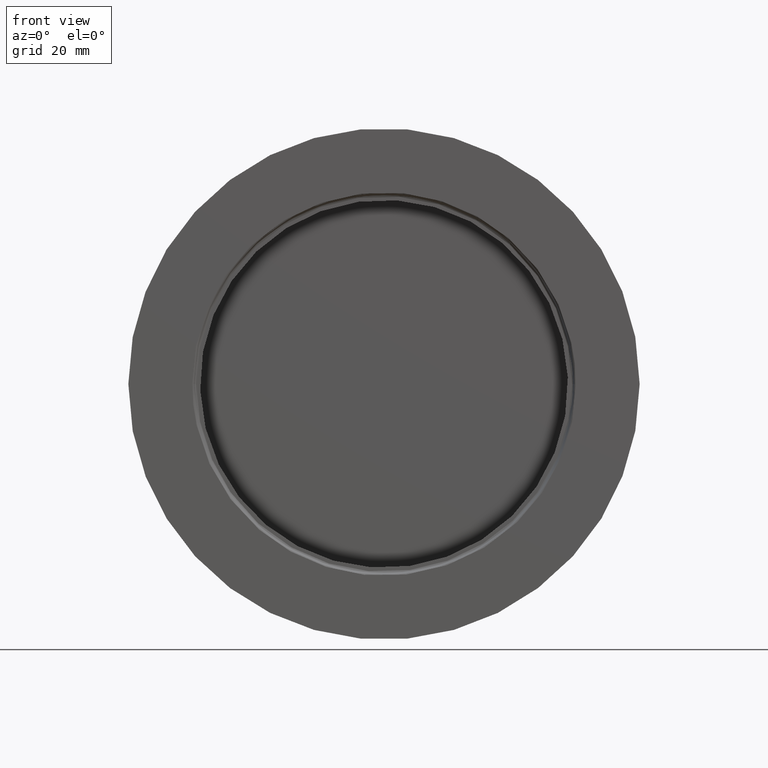
[diagram: clean part render]
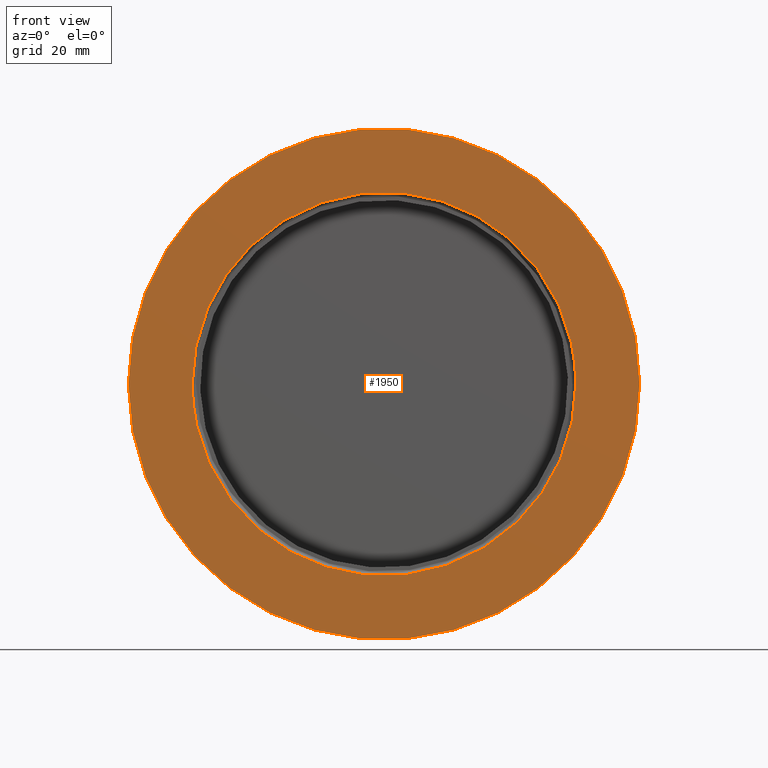
[diagram: same view with one face highlighted and labeled with its STEP entity id]
A machine part, front view. The second image highlights one B-rep face of the part: STEP entity #1950.
In plain terms, the highlighted planar face has unit normal (0, -1, -0).
Its self-contained STEP definition (entity closure, byte-faithful):
#40 = AXIS2_PLACEMENT_3D ( 'NONE', #1377, #1356, #1355 ) ;
#89 = FACE_OUTER_BOUND ( 'NONE', #496, .T. ) ;
#100 = FACE_BOUND ( 'NONE', #495, .T. ) ;
#201 = CIRCLE ( 'NONE', #610, 1.870000000000000100 ) ;
#275 = CIRCLE ( 'NONE', #666, 1.870000000000000100 ) ;
#295 = ORIENTED_EDGE ( 'NONE', *, *, #717, .F. ) ;
#296 = ORIENTED_EDGE ( 'NONE', *, *, #564, .F. ) ;
#297 = ORIENTED_EDGE ( 'NONE', *, *, #683, .T. ) ;
#298 = ORIENTED_EDGE ( 'NONE', *, *, #753, .T. ) ;
#495 = EDGE_LOOP ( 'NONE', ( #297, #298 ) ) ;
#496 = EDGE_LOOP ( 'NONE', ( #295, #296 ) ) ;
#564 = EDGE_CURVE ( 'NONE', #1999, #2010, #275, .T. ) ;
#610 = AXIS2_PLACEMENT_3D ( 'NONE', #1399, #1400, #1394 ) ;
#666 = AXIS2_PLACEMENT_3D ( 'NONE', #815, #813, #816 ) ;
#683 = EDGE_CURVE ( 'NONE', #1977, #1978, #1121, .T. ) ;
#717 = EDGE_CURVE ( 'NONE', #2010, #1999, #201, .T. ) ;
#753 = EDGE_CURVE ( 'NONE', #1978, #1977, #1117, .T. ) ;
#813 = DIRECTION ( 'NONE',  ( 0.0000000000000000000, 1.000000000000000000, 0.0000000000000000000 ) ) ;
#815 = CARTESIAN_POINT ( 'NONE',  ( 0.0000000000000000000, -0.2350000000000000100, 0.0000000000000000000 ) ) ;
#816 = DIRECTION ( 'NONE',  ( 1.000000000000000000, 0.0000000000000000000, 0.0000000000000000000 ) ) ;
#1117 = B_SPLINE_CURVE_WITH_KNOTS ( 'NONE', 3,
 ( #1756, #1755, #1751, #1750, #1749, #1748, #1747, #1746, #1745, #1744, #1743, #1742, #1741, #1740, #1739, #1738, #1737, #1736, #1735, #1734, #1733, #1732, #1731, #1730, #1729, #1728, #1727, #1726, #1725, #1724, #1723, #1722, #1721, #1720, #1719, #1718, #1717, #1716, #1715, #1714, #1713, #1712, #1711, #1710, #1709, #1708, #1707, #1706, #1705, #1704, #1703, #1702, #1701, #1700, #1699, #1698, #1697, #1696, #1695, #1694, #1693, #1692, #1691, #1690, #1689, #1688, #1687, #1686, #1685, #1684, #1683, #1682, #1681, #1680, #1679, #1678, #1677, #1676, #1675, #1674, #1673, #1672, #1671, #1670, #1669, #1668, #1667, #1666, #1665, #1664, #1663, #1662, #1661, #1660, #1659, #1658, #1657, #1656, #1655, #1654, #1653, #1652, #1651, #1646, #1645, #1644, #1641, #1640, #1639, #1638, #1637, #1636, #1635, #1634 ),
 .UNSPECIFIED., .F., .F.,
 ( 4, 1, 1, 1, 1, 1, 2, 2, 1, 1, 1, 1, 1, 2, 2, 1, 1, 1, 1, 2, 2, 2, 1, 1, 1, 1, 2, 2, 1, 1, 1, 1, 1, 2, 2, 1, 1, 1, 1, 1, 2, 2, 2, 1, 1, 1, 1, 1, 2, 2, 1, 1, 1, 1, 1, 2, 2, 1, 1, 1, 1, 2, 2, 2, 1, 1, 1, 1, 2, 2, 1, 1, 1, 1, 1, 2, 2, 1, 1, 1, 1, 1, 2, 2, 4 ),
 ( 0.5000000000000000000, 0.5156250000000021100, 0.5234375000000032200, 0.5273437500000037700, 0.5292968750000040000, 0.5302734375000041100, 0.5307617187500042200, 0.5312500000000042200, 0.5468750000000056600, 0.5546875000000064400, 0.5585937500000067700, 0.5605468750000068800, 0.5615234375000069900, 0.5620117187500069900, 0.5625000000000071100, 0.5781250000000082200, 0.5859375000000087700, 0.5898437500000089900, 0.5917968750000091000, 0.5927734375000091000, 0.5937500000000092100, 0.6250000000000114400, 0.6406250000000126600, 0.6484375000000131000, 0.6523437500000135400, 0.6542968750000136600, 0.6552734375000137700, 0.6562500000000137700, 0.6718750000000151000, 0.6796875000000156500, 0.6835937500000159900, 0.6855468750000161000, 0.6865234375000162100, 0.6870117187500162100, 0.6875000000000162100, 0.7031250000000163200, 0.7109375000000164300, 0.7148437500000164300, 0.7167968750000164300, 0.7177734375000163200, 0.7182617187500163200, 0.7187500000000163200, 0.7500000000000162100, 0.7656250000000159900, 0.7734375000000159900, 0.7773437500000159900, 0.7792968750000159900, 0.7802734375000159900, 0.7807617187500159900, 0.7812500000000159900, 0.7968750000000159900, 0.8046875000000159900, 0.8085937500000158800, 0.8105468750000158800, 0.8115234375000157700, 0.8120117187500158800, 0.8125000000000158800, 0.8281250000000156500, 0.8359375000000155400, 0.8398437500000155400, 0.8417968750000155400, 0.8427734375000155400, 0.8437500000000155400, 0.8750000000000148800, 0.8906250000000146500, 0.8984375000000144300, 0.9023437500000144300, 0.9042968750000144300, 0.9052734375000143200, 0.9062500000000142100, 0.9218750000000129900, 0.9296875000000123200, 0.9335937500000119900, 0.9355468750000117700, 0.9365234375000117700, 0.9370117187500116600, 0.9375000000000115500, 0.9531250000000084400, 0.9609375000000068800, 0.9648437500000061100, 0.9667968750000056600, 0.9677734375000055500, 0.9682617187500053300, 0.9687500000000053300, 1.000000000000000000 ),
 .UNSPECIFIED. ) ;
#1121 = B_SPLINE_CURVE_WITH_KNOTS ( 'NONE', 3,
 ( #2303, #2308, #2307, #2302, #2301, #2300, #2299, #2298, #2297, #2296, #2295, #2294, #2293, #2292, #2291, #2290, #2289, #2288, #2287, #2286, #2285, #2284, #2283, #2282, #2281, #2280, #2279, #2278, #2277, #2276, #2275, #2274, #2273, #2272, #2271, #2269, #2268, #2267, #2266, #2264, #2262, #2261, #2260, #2259, #2258, #2257, #2256, #2255, #2254, #2253, #2252, #2251, #2250, #2249, #2248, #2247, #2246, #2245, #2244, #2243, #2242, #2159, #2158, #2156, #2149, #2148, #2143, #2142, #2136, #2130, #2126, #2125, #2115, #2114, #2112, #2108, #2107, #2105, #2100, #2095, #2091, #2089, #2085, #2080, #2079, #2076, #2073, #2071, #2070, #2066, #2065, #2063, #2061, #2059, #2381, #2380, #2431, #2157, #2151, #2152, #2516, #2515, #2514, #2493, #2492, #2491, #2471, #2470, #2469, #2443, #2442, #2441, #2417, #2416 ),
 .UNSPECIFIED., .F., .F.,
 ( 4, 1, 1, 1, 1, 1, 2, 2, 1, 1, 1, 1, 1, 2, 2, 1, 1, 1, 1, 2, 2, 2, 1, 1, 1, 1, 2, 2, 1, 1, 1, 1, 1, 2, 2, 1, 1, 1, 1, 1, 2, 2, 2, 1, 1, 1, 1, 1, 2, 2, 1, 1, 1, 1, 1, 2, 2, 1, 1, 1, 1, 2, 2, 2, 1, 1, 1, 1, 2, 2, 1, 1, 1, 1, 1, 2, 2, 1, 1, 1, 1, 1, 2, 2, 4 ),
 ( 0.0000000000000000000, 0.01562500000000017000, 0.02343750000000025700, 0.02734375000000030500, 0.02929687500000033700, 0.03027343750000035000, 0.03076171875000034000, 0.03125000000000033300, 0.04687499999999986100, 0.05468749999999963900, 0.05859374999999953500, 0.06054687499999948700, 0.06152343749999945900, 0.06201171874999945900, 0.06249999999999945900, 0.07812499999999898700, 0.08593749999999879300, 0.08984374999999870900, 0.09179687499999869500, 0.09277343749999868200, 0.09374999999999865400, 0.1249999999999985300, 0.1406249999999984700, 0.1484374999999984500, 0.1523437499999984500, 0.1542968749999984200, 0.1552734374999984200, 0.1562499999999983900, 0.1718749999999980800, 0.1796874999999979200, 0.1835937499999978600, 0.1855468749999978400, 0.1865234374999978100, 0.1870117187499977800, 0.1874999999999977500, 0.2031249999999974200, 0.2109374999999972500, 0.2148437499999971400, 0.2167968749999971100, 0.2177734374999970900, 0.2182617187499971100, 0.2187499999999971100, 0.2499999999999978900, 0.2656249999999982800, 0.2734374999999985000, 0.2773437499999985600, 0.2792968749999986100, 0.2802734374999986100, 0.2807617187499986100, 0.2812499999999986100, 0.2968749999999989500, 0.3046874999999991100, 0.3085937499999991700, 0.3105468749999992200, 0.3115234374999992200, 0.3120117187499992200, 0.3124999999999992200, 0.3281249999999991100, 0.3359374999999990600, 0.3398437499999990600, 0.3417968749999990000, 0.3427734374999990000, 0.3437499999999990000, 0.3749999999999995000, 0.3906249999999998300, 0.3984374999999999400, 0.4023437500000000000, 0.4042968750000000000, 0.4052734375000000000, 0.4062500000000000600, 0.4218750000000003900, 0.4296875000000005600, 0.4335937500000006100, 0.4355468750000006100, 0.4365234375000006700, 0.4370117187500006700, 0.4375000000000006700, 0.4531250000000002200, 0.4609375000000000000, 0.4648437499999998900, 0.4667968749999998300, 0.4677734374999998900, 0.4682617187499998900, 0.4687499999999998900, 0.5000000000000000000 ),
 .UNSPECIFIED. ) ;
#1168 = CARTESIAN_POINT ( 'NONE',  ( 1.870000000000000100, -0.2350000000000000100, 0.0000000000000000000 ) ) ;
#1179 = CARTESIAN_POINT ( 'NONE',  ( -1.870000000000000100, -0.2350000000000000100, -2.290089514405550600E-016 ) ) ;
#1198 = CARTESIAN_POINT ( 'NONE',  ( 1.403000000000000200, -0.2350000000000000100, -1.718179459203736800E-016 ) ) ;
#1199 = CARTESIAN_POINT ( 'NONE',  ( -1.403000000000000000, -0.2350000000000000100, 0.0000000000000000000 ) ) ;
#1355 = DIRECTION ( 'NONE',  ( -1.000000000000000000, 0.0000000000000000000, -0.0000000000000000000 ) ) ;
#1356 = DIRECTION ( 'NONE',  ( 0.0000000000000000000, -1.000000000000000000, -0.0000000000000000000 ) ) ;
#1359 = PLANE ( 'NONE',  #40 ) ;
#1377 = CARTESIAN_POINT ( 'NONE',  ( 0.0000000000000000000, -0.2350000000000000100, 0.0000000000000000000 ) ) ;
#1394 = DIRECTION ( 'NONE',  ( 1.000000000000000000, 0.0000000000000000000, 0.0000000000000000000 ) ) ;
#1399 = CARTESIAN_POINT ( 'NONE',  ( 0.0000000000000000000, -0.2350000000000000100, 0.0000000000000000000 ) ) ;
#1400 = DIRECTION ( 'NONE',  ( 0.0000000000000000000, 1.000000000000000000, 0.0000000000000000000 ) ) ;
#1634 = CARTESIAN_POINT ( 'NONE',  ( -1.403000000000000000, -0.2350000000000000100, 0.0000000000000000000 ) ) ;
#1635 = CARTESIAN_POINT ( 'NONE',  ( -1.403002553954551000, -0.2350000000000001000, -0.08580757205452498000 ) ) ;
#1636 = CARTESIAN_POINT ( 'NONE',  ( -1.395195031250702900, -0.2350000000000001300, -0.1709056262326035200 ) ) ;
#1637 = CARTESIAN_POINT ( 'NONE',  ( -1.379333406898419100, -0.2350000000000000400, -0.2566127334139520200 ) ) ;
#1638 = CARTESIAN_POINT ( 'NONE',  ( -1.379057777472935800, -0.2350000000000001300, -0.2580903113319918400 ) ) ;
#1639 = CARTESIAN_POINT ( 'NONE',  ( -1.378531922855248800, -0.2349999999999999600, -0.2608846669285625500 ) ) ;
#1640 = CARTESIAN_POINT ( 'NONE',  ( -1.377736940726554100, -0.2350000000000000400, -0.2650744071222370700 ) ) ;
#1641 = CARTESIAN_POINT ( 'NONE',  ( -1.375838581011090000, -0.2350000000000000400, -0.2748379151658705300 ) ) ;
#1644 = CARTESIAN_POINT ( 'NONE',  ( -1.371868255919479000, -0.2350000000000001000, -0.2943147216200450200 ) ) ;
#1645 = CARTESIAN_POINT ( 'NONE',  ( -1.363233183093513400, -0.2350000000000000100, -0.3330674959960219200 ) ) ;
#1646 = CARTESIAN_POINT ( 'NONE',  ( -1.343185346870615200, -0.2350000000000000100, -0.4097696906184912800 ) ) ;
#1651 = CARTESIAN_POINT ( 'NONE',  ( -1.321239731986471300, -0.2350000000000001000, -0.4741372503586316300 ) ) ;
#1652 = CARTESIAN_POINT ( 'NONE',  ( -1.303969650590718300, -0.2350000000000000100, -0.5177587408639537900 ) ) ;
#1653 = CARTESIAN_POINT ( 'NONE',  ( -1.303399967751211600, -0.2349999999999999900, -0.5191913595515171800 ) ) ;
#1654 = CARTESIAN_POINT ( 'NONE',  ( -1.302300733931032900, -0.2349999999999999600, -0.5219426103207502900 ) ) ;
#1655 = CARTESIAN_POINT ( 'NONE',  ( -1.300645668019965000, -0.2350000000000000100, -0.5260662552076239600 ) ) ;
#1656 = CARTESIAN_POINT ( 'NONE',  ( -1.296740341295209700, -0.2350000000000000400, -0.5356654744081605900 ) ) ;
#1657 = CARTESIAN_POINT ( 'NONE',  ( -1.288755662783301900, -0.2349999999999999900, -0.5547734373338951700 ) ) ;
#1658 = CARTESIAN_POINT ( 'NONE',  ( -1.272090205509907000, -0.2350000000000000100, -0.5926274612840074500 ) ) ;
#1659 = CARTESIAN_POINT ( 'NONE',  ( -1.235974889964798700, -0.2350000000000001300, -0.6668879015788050600 ) ) ;
#1660 = CARTESIAN_POINT ( 'NONE',  ( -1.200245646357583700, -0.2350000000000000400, -0.7280580945079009300 ) ) ;
#1661 = CARTESIAN_POINT ( 'NONE',  ( -1.172683393232405000, -0.2350000000000001000, -0.7702151083425712300 ) ) ;
#1662 = CARTESIAN_POINT ( 'NONE',  ( -1.170984025946419900, -0.2350000000000001000, -0.7727966177258446300 ) ) ;
#1663 = CARTESIAN_POINT ( 'NONE',  ( -1.167640689508077100, -0.2350000000000000100, -0.7778394906498868900 ) ) ;
#1664 = CARTESIAN_POINT ( 'NONE',  ( -1.162603024705567900, -0.2350000000000000400, -0.7853853392335047300 ) ) ;
#1665 = CARTESIAN_POINT ( 'NONE',  ( -1.150689852484754000, -0.2350000000000000100, -0.8028630936448194500 ) ) ;
#1666 = CARTESIAN_POINT ( 'NONE',  ( -1.126229023983283700, -0.2350000000000000400, -0.8373016999989475500 ) ) ;
#1667 = CARTESIAN_POINT ( 'NONE',  ( -1.074769430740975600, -0.2350000000000001000, -0.9041113028331886300 ) ) ;
#1668 = CARTESIAN_POINT ( 'NONE',  ( -1.026310460122937100, -0.2350000000000001000, -0.9578322026213742500 ) ) ;
#1669 = CARTESIAN_POINT ( 'NONE',  ( -0.9235915217683050600, -0.2350000000000000100, -1.060548036771430400 ) ) ;
#1670 = CARTESIAN_POINT ( 'NONE',  ( -0.8487931311674815600, -0.2350000000000000400, -1.121312546181345300 ) ) ;
#1671 = CARTESIAN_POINT ( 'NONE',  ( -0.7652022262753511700, -0.2349999999999999900, -1.175960707116593800 ) ) ;
#1672 = CARTESIAN_POINT ( 'NONE',  ( -0.7627698138068445000, -0.2350000000000001000, -1.177539814207727600 ) ) ;
#1673 = CARTESIAN_POINT ( 'NONE',  ( -0.7577914906011954400, -0.2350000000000000100, -1.180750028268633200 ) ) ;
#1674 = CARTESIAN_POINT ( 'NONE',  ( -0.7503111527795831600, -0.2350000000000001000, -1.185540451452936600 ) ) ;
#1675 = CARTESIAN_POINT ( 'NONE',  ( -0.7327670601038532800, -0.2350000000000001300, -1.196543820200258300 ) ) ;
#1676 = CARTESIAN_POINT ( 'NONE',  ( -0.6973189903845163900, -0.2350000000000000100, -1.217853416297369500 ) ) ;
#1677 = CARTESIAN_POINT ( 'NONE',  ( -0.6249833134743385500, -0.2350000000000000100, -1.257684042901451700 ) ) ;
#1678 = CARTESIAN_POINT ( 'NONE',  ( -0.5605135261716079900, -0.2350000000000001000, -1.287044181836141300 ) ) ;
#1679 = CARTESIAN_POINT ( 'NONE',  ( -0.5150594822447984700, -0.2349999999999999900, -1.305038261532917200 ) ) ;
#1680 = CARTESIAN_POINT ( 'NONE',  ( -0.5137917320402509700, -0.2350000000000001000, -1.305537828362053800 ) ) ;
#1681 = CARTESIAN_POINT ( 'NONE',  ( -0.5111448127587530100, -0.2350000000000001000, -1.306576464530427000 ) ) ;
#1682 = CARTESIAN_POINT ( 'NONE',  ( -0.5071726600300656700, -0.2350000000000000400, -1.308128212979893500 ) ) ;
#1683 = CARTESIAN_POINT ( 'NONE',  ( -0.4978918870180418800, -0.2349999999999999900, -1.311705518740346100 ) ) ;
#1684 = CARTESIAN_POINT ( 'NONE',  ( -0.4792806744136514100, -0.2349999999999999600, -1.318686367774696900 ) ) ;
#1685 = CARTESIAN_POINT ( 'NONE',  ( -0.4418595828834950300, -0.2350000000000000100, -1.331953015897184400 ) ) ;
#1686 = CARTESIAN_POINT ( 'NONE',  ( -0.3662227345376834500, -0.2349999999999999600, -1.355706112357300400 ) ) ;
#1687 = CARTESIAN_POINT ( 'NONE',  ( -0.3000288668947027100, -0.2349999999999999900, -1.371299852549070500 ) ) ;
#1688 = CARTESIAN_POINT ( 'NONE',  ( -0.2538962030229747200, -0.2350000000000000400, -1.379836106242810200 ) ) ;
#1689 = CARTESIAN_POINT ( 'NONE',  ( -0.2526566274675116100, -0.2349999999999999900, -1.380063535514442400 ) ) ;
#1690 = CARTESIAN_POINT ( 'NONE',  ( -0.2500185779332329000, -0.2350000000000000100, -1.380543919804805500 ) ) ;
#1691 = CARTESIAN_POINT ( 'NONE',  ( -0.2460609891642638000, -0.2350000000000000400, -1.381258776904722700 ) ) ;
#1692 = CARTESIAN_POINT ( 'NONE',  ( -0.2368230140971423800, -0.2349999999999999900, -1.382886741455149800 ) ) ;
#1693 = CARTESIAN_POINT ( 'NONE',  ( -0.2183326588714650200, -0.2350000000000001000, -1.385982529158481700 ) ) ;
#1694 = CARTESIAN_POINT ( 'NONE',  ( -0.1812943280543658800, -0.2350000000000000400, -1.391533538975054900 ) ) ;
#1695 = CARTESIAN_POINT ( 'NONE',  ( -0.1069871849571949900, -0.2350000000000000100, -1.400073296247833500 ) ) ;
#1696 = CARTESIAN_POINT ( 'NONE',  ( -0.04290023693737982800, -0.2350000000000000100, -1.403000638435300700 ) ) ;
#1697 = CARTESIAN_POINT ( 'NONE',  ( 0.08580047387476051600, -0.2350000000000000100, -1.402998723129399700 ) ) ;
#1698 = CARTESIAN_POINT ( 'NONE',  ( 0.1709263280433579700, -0.2350000000000000400, -1.395191200011834900 ) ) ;
#1699 = CARTESIAN_POINT ( 'NONE',  ( 0.2566124099481590900, -0.2350000000000000400, -1.379333466761527100 ) ) ;
#1700 = CARTESIAN_POINT ( 'NONE',  ( 0.2580903113318139300, -0.2350000000000000100, -1.379057777472990000 ) ) ;
#1701 = CARTESIAN_POINT ( 'NONE',  ( 0.2608846669282112200, -0.2350000000000000400, -1.378531922855356500 ) ) ;
#1702 = CARTESIAN_POINT ( 'NONE',  ( 0.2650744071216295000, -0.2350000000000001000, -1.377736940726738100 ) ) ;
#1703 = CARTESIAN_POINT ( 'NONE',  ( 0.2748379151646948000, -0.2350000000000000400, -1.375838581011447100 ) ) ;
#1704 = CARTESIAN_POINT ( 'NONE',  ( 0.2943147216178499900, -0.2349999999999999900, -1.371868255920143600 ) ) ;
#1705 = CARTESIAN_POINT ( 'NONE',  ( 0.3330674959922597100, -0.2350000000000000100, -1.363233183094654200 ) ) ;
#1706 = CARTESIAN_POINT ( 'NONE',  ( 0.4097696906134739600, -0.2350000000000000400, -1.343185346872137100 ) ) ;
#1707 = CARTESIAN_POINT ( 'NONE',  ( 0.4741372503557652100, -0.2350000000000000400, -1.321239731987340600 ) ) ;
#1708 = CARTESIAN_POINT ( 'NONE',  ( 0.5177587408640432800, -0.2350000000000000100, -1.303969650590691900 ) ) ;
#1709 = CARTESIAN_POINT ( 'NONE',  ( 0.5191913595514190400, -0.2349999999999999600, -1.303399967751267500 ) ) ;
#1710 = CARTESIAN_POINT ( 'NONE',  ( 0.5219426103205566700, -0.2350000000000000400, -1.302300733931143900 ) ) ;
#1711 = CARTESIAN_POINT ( 'NONE',  ( 0.5260662552072887800, -0.2350000000000000100, -1.300645668020157200 ) ) ;
#1712 = CARTESIAN_POINT ( 'NONE',  ( 0.5356654744075121100, -0.2350000000000000400, -1.296740341295581400 ) ) ;
#1713 = CARTESIAN_POINT ( 'NONE',  ( 0.5547734373326839200, -0.2350000000000000100, -1.288755662783994400 ) ) ;
#1714 = CARTESIAN_POINT ( 'NONE',  ( 0.5926274612819310000, -0.2350000000000000100, -1.272090205511093900 ) ) ;
#1715 = CARTESIAN_POINT ( 'NONE',  ( 0.6668879015760370600, -0.2350000000000000400, -1.235974889966379400 ) ) ;
#1716 = CARTESIAN_POINT ( 'NONE',  ( 0.7280580945063193100, -0.2350000000000000400, -1.200245646358487600 ) ) ;
#1717 = CARTESIAN_POINT ( 'NONE',  ( 0.7702151083426697100, -0.2350000000000000100, -1.172683393232348400 ) ) ;
#1718 = CARTESIAN_POINT ( 'NONE',  ( 0.7727966177257964400, -0.2350000000000000400, -1.170984025946467000 ) ) ;
#1719 = CARTESIAN_POINT ( 'NONE',  ( 0.7778394906497944100, -0.2350000000000001000, -1.167640689508169700 ) ) ;
#1720 = CARTESIAN_POINT ( 'NONE',  ( 0.7853853392333465200, -0.2350000000000000400, -1.162603024705726000 ) ) ;
#1721 = CARTESIAN_POINT ( 'NONE',  ( 0.8028630936445246800, -0.2350000000000000100, -1.150689852485048600 ) ) ;
#1722 = CARTESIAN_POINT ( 'NONE',  ( 0.8373016999984411700, -0.2350000000000000100, -1.126229023983788900 ) ) ;
#1723 = CARTESIAN_POINT ( 'NONE',  ( 0.9041113028325152800, -0.2350000000000001000, -1.074769430741649300 ) ) ;
#1724 = CARTESIAN_POINT ( 'NONE',  ( 0.9578322026209887800, -0.2349999999999999600, -1.026310460123322200 ) ) ;
#1725 = CARTESIAN_POINT ( 'NONE',  ( 1.060548036772200700, -0.2349999999999999600, -0.9235915217675351200 ) ) ;
#1726 = CARTESIAN_POINT ( 'NONE',  ( 1.121312546182990300, -0.2350000000000001000, -0.8487931311658361000 ) ) ;
#1727 = CARTESIAN_POINT ( 'NONE',  ( 1.175960707116542300, -0.2349999999999999900, -0.7652022262754025700 ) ) ;
#1728 = CARTESIAN_POINT ( 'NONE',  ( 1.177539814207780900, -0.2350000000000000100, -0.7627698138067116100 ) ) ;
#1729 = CARTESIAN_POINT ( 'NONE',  ( 1.180750028268735800, -0.2349999999999999900, -0.7577914906009356500 ) ) ;
#1730 = CARTESIAN_POINT ( 'NONE',  ( 1.185540451453111200, -0.2349999999999999300, -0.7503111527791396200 ) ) ;
#1731 = CARTESIAN_POINT ( 'NONE',  ( 1.196543820200586500, -0.2350000000000001000, -0.7327670601030250600 ) ) ;
#1732 = CARTESIAN_POINT ( 'NONE',  ( 1.217853416297931500, -0.2350000000000000400, -0.6973189903830969700 ) ) ;
#1733 = CARTESIAN_POINT ( 'NONE',  ( 1.257684042902200900, -0.2350000000000000100, -0.6249833134724458400 ) ) ;
#1734 = CARTESIAN_POINT ( 'NONE',  ( 1.287044181836569700, -0.2349999999999999900, -0.5605135261705264100 ) ) ;
#1735 = CARTESIAN_POINT ( 'NONE',  ( 1.305038261532903500, -0.2350000000000000100, -0.5150594822448322200 ) ) ;
#1736 = CARTESIAN_POINT ( 'NONE',  ( 1.305537828362020000, -0.2350000000000001000, -0.5137917320403366800 ) ) ;
#1737 = CARTESIAN_POINT ( 'NONE',  ( 1.306576464530359700, -0.2349999999999999900, -0.5111448127589225400 ) ) ;
#1738 = CARTESIAN_POINT ( 'NONE',  ( 1.308128212979778200, -0.2350000000000000400, -0.5071726600303588800 ) ) ;
#1739 = CARTESIAN_POINT ( 'NONE',  ( 1.311705518740121400, -0.2350000000000000100, -0.4978918870186095400 ) ) ;
#1740 = CARTESIAN_POINT ( 'NONE',  ( 1.318686367774277500, -0.2350000000000000100, -0.4792806744147108900 ) ) ;
#1741 = CARTESIAN_POINT ( 'NONE',  ( 1.331953015896465200, -0.2350000000000001000, -0.4418595828853109100 ) ) ;
#1742 = CARTESIAN_POINT ( 'NONE',  ( 1.355706112356341400, -0.2350000000000000100, -0.3662227345401042900 ) ) ;
#1743 = CARTESIAN_POINT ( 'NONE',  ( 1.371299852548523200, -0.2349999999999999600, -0.3000288668960858800 ) ) ;
#1744 = CARTESIAN_POINT ( 'NONE',  ( 1.379836106242827000, -0.2350000000000000100, -0.2538962030229318100 ) ) ;
#1745 = CARTESIAN_POINT ( 'NONE',  ( 1.380063535514442400, -0.2350000000000000400, -0.2526566274676041400 ) ) ;
#1746 = CARTESIAN_POINT ( 'NONE',  ( 1.380543919804804600, -0.2350000000000000100, -0.2500185779334153600 ) ) ;
#1747 = CARTESIAN_POINT ( 'NONE',  ( 1.381258776904722200, -0.2350000000000000400, -0.2460609891645786400 ) ) ;
#1748 = CARTESIAN_POINT ( 'NONE',  ( 1.382886741455150700, -0.2350000000000000400, -0.2368230140977523300 ) ) ;
#1749 = CARTESIAN_POINT ( 'NONE',  ( 1.385982529158482200, -0.2350000000000000100, -0.2183326588726026400 ) ) ;
#1750 = CARTESIAN_POINT ( 'NONE',  ( 1.391533538975054100, -0.2350000000000000400, -0.1812943280563163500 ) ) ;
#1751 = CARTESIAN_POINT ( 'NONE',  ( 1.400073296247833300, -0.2350000000000001000, -0.1069871849597953700 ) ) ;
#1755 = CARTESIAN_POINT ( 'NONE',  ( 1.403000638435300400, -0.2349999999999999900, -0.04290023693886604200 ) ) ;
#1756 = CARTESIAN_POINT ( 'NONE',  ( 1.403000000000000200, -0.2350000000000000100, -1.718179459203736800E-016 ) ) ;
#1950 = ADVANCED_FACE ( 'NONE', ( #89, #100 ), #1359, .T. ) ;
#1977 = VERTEX_POINT ( 'NONE', #1199 ) ;
#1978 = VERTEX_POINT ( 'NONE', #1198 ) ;
#1999 = VERTEX_POINT ( 'NONE', #1179 ) ;
#2010 = VERTEX_POINT ( 'NONE', #1168 ) ;
#2059 = CARTESIAN_POINT ( 'NONE',  ( 1.200245646357934100, -0.2350000000000001000, 0.7280580945076380300 ) ) ;
#2061 = CARTESIAN_POINT ( 'NONE',  ( 1.172683393232382800, -0.2350000000000000100, 0.7702151083425868800 ) ) ;
#2063 = CARTESIAN_POINT ( 'NONE',  ( 1.170984025946354900, -0.2349999999999999900, 0.7727966177259086900 ) ) ;
#2065 = CARTESIAN_POINT ( 'NONE',  ( 1.167640689507950500, -0.2349999999999999900, 0.7778394906500132300 ) ) ;
#2066 = CARTESIAN_POINT ( 'NONE',  ( 1.162603024705352700, -0.2350000000000001000, 0.7853853392337201100 ) ) ;
#2070 = CARTESIAN_POINT ( 'NONE',  ( 1.150689852484351400, -0.2350000000000000100, 0.8028630936452226800 ) ) ;
#2071 = CARTESIAN_POINT ( 'NONE',  ( 1.126229023982593400, -0.2350000000000000100, 0.8373016999996374400 ) ) ;
#2073 = CARTESIAN_POINT ( 'NONE',  ( 1.074769430740054800, -0.2350000000000000100, 0.9041113028341096800 ) ) ;
#2076 = CARTESIAN_POINT ( 'NONE',  ( 1.026310460122410900, -0.2350000000000000100, 0.9578322026219005000 ) ) ;
#2079 = CARTESIAN_POINT ( 'NONE',  ( 0.9235915217693566600, -0.2349999999999999600, 1.060548036770378800 ) ) ;
#2080 = CARTESIAN_POINT ( 'NONE',  ( 0.8487931311652404700, -0.2349999999999999900, 1.121312546183586400 ) ) ;
#2085 = CARTESIAN_POINT ( 'NONE',  ( 0.7652022262754213400, -0.2350000000000000100, 1.175960707116523700 ) ) ;
#2089 = CARTESIAN_POINT ( 'NONE',  ( 0.7627698138068005300, -0.2350000000000000400, 1.177539814207710000 ) ) ;
#2091 = CARTESIAN_POINT ( 'NONE',  ( 0.7577914906011092900, -0.2349999999999999900, 1.180750028268598800 ) ) ;
#2095 = CARTESIAN_POINT ( 'NONE',  ( 0.7503111527794360500, -0.2350000000000000400, 1.185540451452876700 ) ) ;
#2100 = CARTESIAN_POINT ( 'NONE',  ( 0.7327670601035773900, -0.2350000000000000100, 1.196543820200147700 ) ) ;
#2105 = CARTESIAN_POINT ( 'NONE',  ( 0.6973189903840443200, -0.2350000000000000100, 1.217853416297179500 ) ) ;
#2107 = CARTESIAN_POINT ( 'NONE',  ( 0.6249833134737086100, -0.2350000000000000100, 1.257684042901198600 ) ) ;
#2108 = CARTESIAN_POINT ( 'NONE',  ( 0.5605135261712481700, -0.2350000000000000400, 1.287044181835996800 ) ) ;
#2112 = CARTESIAN_POINT ( 'NONE',  ( 0.5150594822448105700, -0.2350000000000000100, 1.305038261532921000 ) ) ;
#2114 = CARTESIAN_POINT ( 'NONE',  ( 0.5137917320404225000, -0.2349999999999999900, 1.305537828362003200 ) ) ;
#2115 = CARTESIAN_POINT ( 'NONE',  ( 0.5111448127590916300, -0.2349999999999999900, 1.306576464530326200 ) ) ;
#2125 = CARTESIAN_POINT ( 'NONE',  ( 0.5071726600306503100, -0.2350000000000000100, 1.308128212979720500 ) ) ;
#2126 = CARTESIAN_POINT ( 'NONE',  ( 0.4978918870191729700, -0.2350000000000000400, 1.311705518740011700 ) ) ;
#2130 = CARTESIAN_POINT ( 'NONE',  ( 0.4792806744157619400, -0.2349999999999999900, 1.318686367774072100 ) ) ;
#2136 = CARTESIAN_POINT ( 'NONE',  ( 0.4418595828871120200, -0.2350000000000000100, 1.331953015896114400 ) ) ;
#2142 = CARTESIAN_POINT ( 'NONE',  ( 0.3662227345425053100, -0.2350000000000000100, 1.355706112355873600 ) ) ;
#2143 = CARTESIAN_POINT ( 'NONE',  ( 0.3000288668974578400, -0.2350000000000000400, 1.371299852548255800 ) ) ;
#2148 = CARTESIAN_POINT ( 'NONE',  ( 0.2538962030228891200, -0.2350000000000000100, 1.379836106242835300 ) ) ;
#2149 = CARTESIAN_POINT ( 'NONE',  ( 0.2526566274676087500, -0.2349999999999999900, 1.380063535514442400 ) ) ;
#2151 = CARTESIAN_POINT ( 'NONE',  ( 1.300645668020039600, -0.2350000000000001000, 0.5260662552075685600 ) ) ;
#2152 = CARTESIAN_POINT ( 'NONE',  ( 1.302300733931076400, -0.2350000000000000100, 0.5219426103207182000 ) ) ;
#2156 = CARTESIAN_POINT ( 'NONE',  ( 0.2500185779334241400, -0.2349999999999999900, 1.380543919804805300 ) ) ;
#2157 = CARTESIAN_POINT ( 'NONE',  ( 1.296740341295353500, -0.2350000000000000400, 0.5356654744080530100 ) ) ;
#2158 = CARTESIAN_POINT ( 'NONE',  ( 0.2460609891645938200, -0.2350000000000000100, 1.381258776904722200 ) ) ;
#2159 = CARTESIAN_POINT ( 'NONE',  ( 0.2368230140977812500, -0.2350000000000000100, 1.382886741455150000 ) ) ;
#2242 = CARTESIAN_POINT ( 'NONE',  ( 0.2183326588726567100, -0.2350000000000000400, 1.385982529158482200 ) ) ;
#2243 = CARTESIAN_POINT ( 'NONE',  ( 0.1812943280564088300, -0.2350000000000000100, 1.391533538975054300 ) ) ;
#2244 = CARTESIAN_POINT ( 'NONE',  ( 0.1069871849599191400, -0.2350000000000000100, 1.400073296247833100 ) ) ;
#2245 = CARTESIAN_POINT ( 'NONE',  ( 0.04290023693893625600, -0.2350000000000000400, 1.403000638435301300 ) ) ;
#2246 = CARTESIAN_POINT ( 'NONE',  ( -0.08580047387787251300, -0.2349999999999999900, 1.402998723129399200 ) ) ;
#2247 = CARTESIAN_POINT ( 'NONE',  ( -0.1709263280434283000, -0.2349999999999999600, 1.395191200011834700 ) ) ;
#2248 = CARTESIAN_POINT ( 'NONE',  ( -0.2566124099481580400, -0.2349999999999999900, 1.379333466761526500 ) ) ;
#2249 = CARTESIAN_POINT ( 'NONE',  ( -0.2580903113319327200, -0.2349999999999999900, 1.379057777472966700 ) ) ;
#2250 = CARTESIAN_POINT ( 'NONE',  ( -0.2608846669284457500, -0.2350000000000000400, 1.378531922855312100 ) ) ;
#2251 = CARTESIAN_POINT ( 'NONE',  ( -0.2650744071220349500, -0.2350000000000001000, 1.377736940726661100 ) ) ;
#2252 = CARTESIAN_POINT ( 'NONE',  ( -0.2748379151654796200, -0.2350000000000001000, 1.375838581011298700 ) ) ;
#2253 = CARTESIAN_POINT ( 'NONE',  ( -0.2943147216193151600, -0.2350000000000001000, 1.371868255919867800 ) ) ;
#2254 = CARTESIAN_POINT ( 'NONE',  ( -0.3330674959947707600, -0.2349999999999999600, 1.363233183094180200 ) ) ;
#2255 = CARTESIAN_POINT ( 'NONE',  ( -0.4097696906168230000, -0.2349999999999999600, 1.343185346871504000 ) ) ;
#2256 = CARTESIAN_POINT ( 'NONE',  ( -0.4741372503576787300, -0.2349999999999999600, 1.321239731986978900 ) ) ;
#2257 = CARTESIAN_POINT ( 'NONE',  ( -0.5177587408639841000, -0.2350000000000000400, 1.303969650590703500 ) ) ;
#2258 = CARTESIAN_POINT ( 'NONE',  ( -0.5191913595516174400, -0.2350000000000001000, 1.303399967751164700 ) ) ;
#2259 = CARTESIAN_POINT ( 'NONE',  ( -0.5219426103209481300, -0.2350000000000000400, 1.302300733930938900 ) ) ;
#2260 = CARTESIAN_POINT ( 'NONE',  ( -0.5260662552079653500, -0.2350000000000000400, 1.300645668019802200 ) ) ;
#2261 = CARTESIAN_POINT ( 'NONE',  ( -0.5356654744088210600, -0.2350000000000000400, 1.296740341294892800 ) ) ;
#2262 = CARTESIAN_POINT ( 'NONE',  ( -0.5547734373351273000, -0.2350000000000000100, 1.288755662782710800 ) ) ;
#2264 = CARTESIAN_POINT ( 'NONE',  ( -0.5926274612861189800, -0.2350000000000000400, 1.272090205508893400 ) ) ;
#2266 = CARTESIAN_POINT ( 'NONE',  ( -0.6668879015816207000, -0.2350000000000000100, 1.235974889963445500 ) ) ;
#2267 = CARTESIAN_POINT ( 'NONE',  ( -0.7280580945095099800, -0.2350000000000000100, 1.200245646356811000 ) ) ;
#2268 = CARTESIAN_POINT ( 'NONE',  ( -0.7702151083424703100, -0.2350000000000000100, 1.172683393232453000 ) ) ;
#2269 = CARTESIAN_POINT ( 'NONE',  ( -0.7727966177259452100, -0.2350000000000000100, 1.170984025946318200 ) ) ;
#2271 = CARTESIAN_POINT ( 'NONE',  ( -0.7778394906500845100, -0.2350000000000000100, 1.167640689507879000 ) ) ;
#2272 = CARTESIAN_POINT ( 'NONE',  ( -0.7853853392338422400, -0.2350000000000000100, 1.162603024705230600 ) ) ;
#2273 = CARTESIAN_POINT ( 'NONE',  ( -0.8028630936454500500, -0.2350000000000000100, 1.150689852484123400 ) ) ;
#2274 = CARTESIAN_POINT ( 'NONE',  ( -0.8373017000000277900, -0.2350000000000000100, 1.126229023982203000 ) ) ;
#2275 = CARTESIAN_POINT ( 'NONE',  ( -0.9041113028346300400, -0.2350000000000000100, 1.074769430739534300 ) ) ;
#2276 = CARTESIAN_POINT ( 'NONE',  ( -0.9578322026221977000, -0.2349999999999999900, 1.026310460122113400 ) ) ;
#2277 = CARTESIAN_POINT ( 'NONE',  ( -1.060548036769783300, -0.2350000000000000100, 0.9235915217699530700 ) ) ;
#2278 = CARTESIAN_POINT ( 'NONE',  ( -1.121312546181168200, -0.2350000000000000100, 0.8487931311676584200 ) ) ;
#2279 = CARTESIAN_POINT ( 'NONE',  ( -1.175960707116599200, -0.2349999999999999900, 0.7652022262753458400 ) ) ;
#2280 = CARTESIAN_POINT ( 'NONE',  ( -1.177539814207642100, -0.2349999999999999900, 0.7627698138069808300 ) ) ;
#2281 = CARTESIAN_POINT ( 'NONE',  ( -1.180750028268466400, -0.2350000000000000100, 0.7577914906014617800 ) ) ;
#2282 = CARTESIAN_POINT ( 'NONE',  ( -1.185540451452651300, -0.2350000000000000100, 0.7503111527800375700 ) ) ;
#2283 = CARTESIAN_POINT ( 'NONE',  ( -1.196543820199727200, -0.2350000000000000100, 0.7327670601047005000 ) ) ;
#2284 = CARTESIAN_POINT ( 'NONE',  ( -1.217853416296458900, -0.2350000000000000100, 0.6973189903859689000 ) ) ;
#2285 = CARTESIAN_POINT ( 'NONE',  ( -1.257684042900237800, -0.2350000000000000100, 0.6249833134762754500 ) ) ;
#2286 = CARTESIAN_POINT ( 'NONE',  ( -1.287044181835447900, -0.2350000000000000100, 0.5605135261727149900 ) ) ;
#2287 = CARTESIAN_POINT ( 'NONE',  ( -1.305038261532937900, -0.2349999999999999900, 0.5150594822447645000 ) ) ;
#2288 = CARTESIAN_POINT ( 'NONE',  ( -1.305537828362040200, -0.2350000000000000400, 0.5137917320403235800 ) ) ;
#2289 = CARTESIAN_POINT ( 'NONE',  ( -1.306576464530399400, -0.2350000000000000100, 0.5111448127588964500 ) ) ;
#2290 = CARTESIAN_POINT ( 'NONE',  ( -1.308128212979847500, -0.2350000000000001000, 0.5071726600303129200 ) ) ;
#2291 = CARTESIAN_POINT ( 'NONE',  ( -1.311705518740257100, -0.2350000000000000100, 0.4978918870185198900 ) ) ;
#2292 = CARTESIAN_POINT ( 'NONE',  ( -1.318686367774531700, -0.2350000000000000400, 0.4792806744145425800 ) ) ;
#2293 = CARTESIAN_POINT ( 'NONE',  ( -1.331953015896901500, -0.2350000000000001000, 0.4418595828850225800 ) ) ;
#2294 = CARTESIAN_POINT ( 'NONE',  ( -1.355706112356923000, -0.2350000000000000100, 0.3662227345397192600 ) ) ;
#2295 = CARTESIAN_POINT ( 'NONE',  ( -1.371299852548855600, -0.2350000000000000100, 0.3000288668958658300 ) ) ;
#2296 = CARTESIAN_POINT ( 'NONE',  ( -1.379836106242816600, -0.2349999999999999900, 0.2538962030229386900 ) ) ;
#2297 = CARTESIAN_POINT ( 'NONE',  ( -1.380063416723859500, -0.2350000000000000100, 0.2526572694500774900 ) ) ;
#2298 = CARTESIAN_POINT ( 'NONE',  ( -1.380543685029715000, -0.2349999999999999900, 0.2500198467334216500 ) ) ;
#2299 = CARTESIAN_POINT ( 'NONE',  ( -1.381258370958949700, -0.2350000000000001000, 0.2460631830259441500 ) ) ;
#2300 = CARTESIAN_POINT ( 'NONE',  ( -1.382885955753655200, -0.2350000000000001000, 0.2368272602810403700 ) ) ;
#2301 = CARTESIAN_POINT ( 'NONE',  ( -1.385981062515691000, -0.2350000000000000400, 0.2183405850814070200 ) ) ;
#2302 = CARTESIAN_POINT ( 'NONE',  ( -1.391531024730270300, -0.2350000000000000400, 0.1813079158428381700 ) ) ;
#2303 = CARTESIAN_POINT ( 'NONE',  ( -1.403000000000000000, -0.2350000000000000100, 0.0000000000000000000 ) ) ;
#2307 = CARTESIAN_POINT ( 'NONE',  ( -1.400069943921453000, -0.2349999999999999900, 0.1070053020084911900 ) ) ;
#2308 = CARTESIAN_POINT ( 'NONE',  ( -1.402998722820226500, -0.2350000000000001000, 0.04291058953812074100 ) ) ;
#2380 = CARTESIAN_POINT ( 'NONE',  ( 1.272090205510367100, -0.2350000000000000100, 0.5926274612836626200 ) ) ;
#2381 = CARTESIAN_POINT ( 'NONE',  ( 1.235974889965411000, -0.2350000000000001000, 0.6668879015783455400 ) ) ;
#2416 = CARTESIAN_POINT ( 'NONE',  ( 1.403000000000000200, -0.2350000000000000100, -1.718179459203736800E-016 ) ) ;
#2417 = CARTESIAN_POINT ( 'NONE',  ( 1.402998723129399000, -0.2349999999999999900, 0.08580047387773043200 ) ) ;
#2431 = CARTESIAN_POINT ( 'NONE',  ( 1.288755662783569900, -0.2350000000000000100, 0.5547734373336943300 ) ) ;
#2441 = CARTESIAN_POINT ( 'NONE',  ( 1.395191200011834700, -0.2349999999999999600, 0.1709263280434290800 ) ) ;
#2442 = CARTESIAN_POINT ( 'NONE',  ( 1.379333466761526900, -0.2350000000000000100, 0.2566124099481581500 ) ) ;
#2443 = CARTESIAN_POINT ( 'NONE',  ( 1.379057777472987500, -0.2350000000000000100, 0.2580903113318250300 ) ) ;
#2469 = CARTESIAN_POINT ( 'NONE',  ( 1.378531922855351400, -0.2350000000000000100, 0.2608846669282329200 ) ) ;
#2470 = CARTESIAN_POINT ( 'NONE',  ( 1.377736940726729300, -0.2350000000000001300, 0.2650744071216670200 ) ) ;
#2471 = CARTESIAN_POINT ( 'NONE',  ( 1.375838581011430400, -0.2350000000000000400, 0.2748379151647668000 ) ) ;
#2491 = CARTESIAN_POINT ( 'NONE',  ( 1.371868255920113400, -0.2349999999999999600, 0.2943147216179847800 ) ) ;
#2492 = CARTESIAN_POINT ( 'NONE',  ( 1.363233183094602300, -0.2350000000000001000, 0.3330674959924905300 ) ) ;
#2493 = CARTESIAN_POINT ( 'NONE',  ( 1.343185346872067100, -0.2350000000000000400, 0.4097696906137832100 ) ) ;
#2514 = CARTESIAN_POINT ( 'NONE',  ( 1.321239731987300400, -0.2349999999999999900, 0.4741372503559417900 ) ) ;
#2515 = CARTESIAN_POINT ( 'NONE',  ( 1.303969650590693300, -0.2350000000000000100, 0.5177587408640376100 ) ) ;
#2516 = CARTESIAN_POINT ( 'NONE',  ( 1.303399967751233600, -0.2350000000000000400, 0.5191913595515008600 ) ) ;